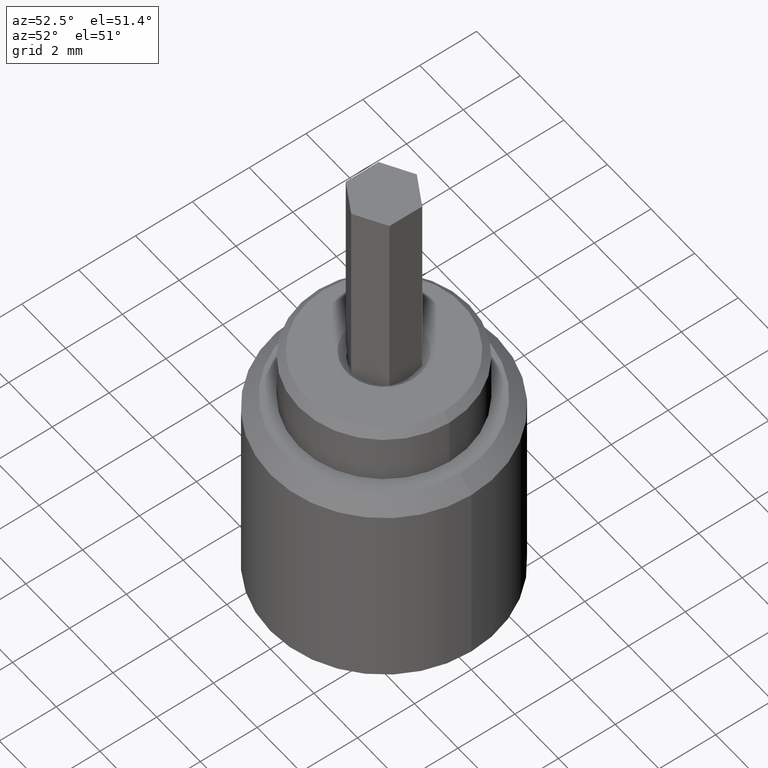
[diagram: clean part render]
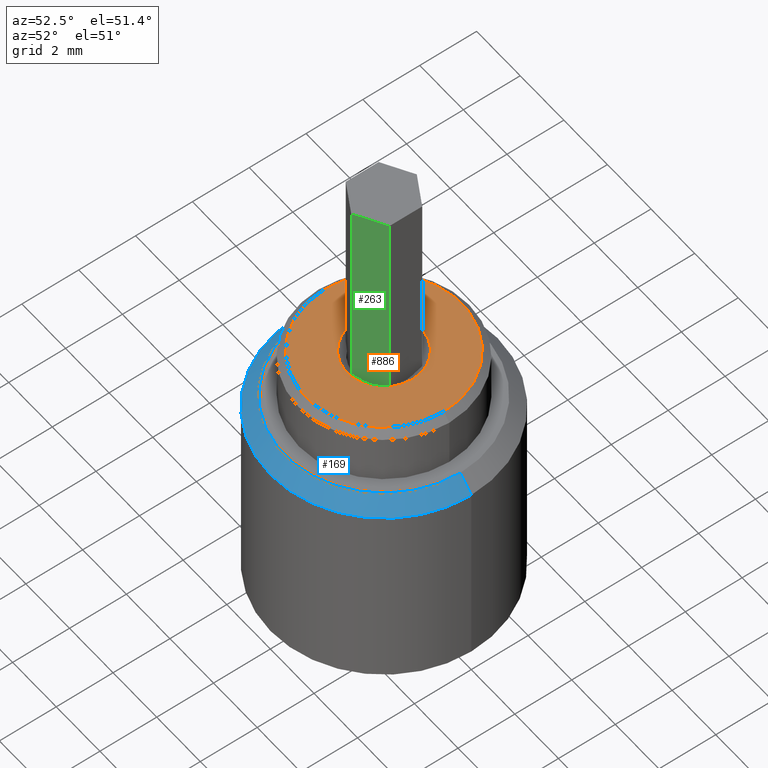
[diagram: same view with three faces highlighted in distinct colors, each labeled with its STEP entity id]
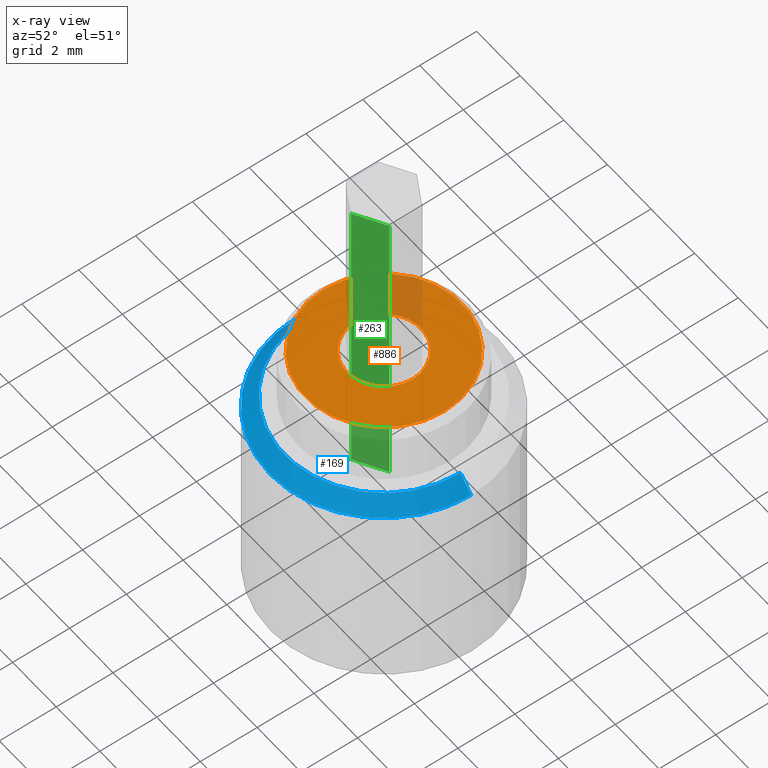
[diagram: x-ray of the same camera — body ghosted, the three highlighted faces saturated]
A machine part, auxiliary view with three faces highlighted in distinct colors.
The next image is the same camera in x-ray (body ghosted, the three faces saturated) — at least one of them is partly hidden behind the body in this view.
Their STEP definitions:

[orange] entity #886 — the highlighted planar face has unit normal (0, 0, 1).
#40 = CARTESIAN_POINT ( 'NONE',  ( 0.000000000000000000, 0.000000000000000000, 10.00000000000000000 ) ) ;
#82 = CARTESIAN_POINT ( 'NONE',  ( 2.749999999999999112, 3.520859547548640440E-16, 10.00000000000000000 ) ) ;
#87 = EDGE_CURVE ( 'NONE', #481, #146, #186, .T. ) ;
#116 = CIRCLE ( 'NONE', #530, 1.300000000000006040 ) ;
#146 = VERTEX_POINT ( 'NONE', #414 ) ;
#184 = CARTESIAN_POINT ( 'NONE',  ( 0.000000000000000000, 0.000000000000000000, 10.00000000000000000 ) ) ;
#186 = CIRCLE ( 'NONE', #810, 2.749999999999999112 ) ;
#227 = CARTESIAN_POINT ( 'NONE',  ( 0.000000000000000000, 0.000000000000000000, 10.00000000000000000 ) ) ;
#238 = EDGE_LOOP ( 'NONE', ( #294, #452 ) ) ;
#250 = CARTESIAN_POINT ( 'NONE',  ( -1.300000000000006040, 1.592040838891566491E-16, 10.00000000000000000 ) ) ;
#272 = AXIS2_PLACEMENT_3D ( 'NONE', #184, #274, #812 ) ;
#274 = DIRECTION ( 'NONE',  ( 0.000000000000000000, 0.000000000000000000, 1.000000000000000000 ) ) ;
#294 = ORIENTED_EDGE ( 'NONE', *, *, #717, .T. ) ;
#308 = DIRECTION ( 'NONE',  ( 1.000000000000000000, 0.000000000000000000, -0.000000000000000000 ) ) ;
#388 = ORIENTED_EDGE ( 'NONE', *, *, #731, .T. ) ;
#400 = CIRCLE ( 'NONE', #272, 2.749999999999999112 ) ;
#414 = CARTESIAN_POINT ( 'NONE',  ( -2.749999999999999112, 0.000000000000000000, 10.00000000000000000 ) ) ;
#419 = DIRECTION ( 'NONE',  ( 1.000000000000000000, 0.000000000000000000, 0.000000000000000000 ) ) ;
#452 = ORIENTED_EDGE ( 'NONE', *, *, #987, .T. ) ;
#481 = VERTEX_POINT ( 'NONE', #82 ) ;
#504 = CARTESIAN_POINT ( 'NONE',  ( 0.000000000000000000, 0.000000000000000000, 10.00000000000000000 ) ) ;
#509 = CARTESIAN_POINT ( 'NONE',  ( 1.300000000000006040, 0.000000000000000000, 10.00000000000000000 ) ) ;
#530 = AXIS2_PLACEMENT_3D ( 'NONE', #227, #595, #842 ) ;
#547 = EDGE_LOOP ( 'NONE', ( #388, #615 ) ) ;
#562 = CARTESIAN_POINT ( 'NONE',  ( 0.000000000000000000, 0.000000000000000000, 10.00000000000000000 ) ) ;
#584 = VERTEX_POINT ( 'NONE', #250 ) ;
#595 = DIRECTION ( 'NONE',  ( -0.000000000000000000, -0.000000000000000000, -1.000000000000000000 ) ) ;
#607 = DIRECTION ( 'NONE',  ( 0.000000000000000000, 0.000000000000000000, 1.000000000000000000 ) ) ;
#615 = ORIENTED_EDGE ( 'NONE', *, *, #87, .T. ) ;
#646 = DIRECTION ( 'NONE',  ( 1.000000000000000000, 0.000000000000000000, 0.000000000000000000 ) ) ;
#660 = DIRECTION ( 'NONE',  ( 0.000000000000000000, 0.000000000000000000, 1.000000000000000000 ) ) ;
#717 = EDGE_CURVE ( 'NONE', #916, #584, #931, .T. ) ;
#731 = EDGE_CURVE ( 'NONE', #146, #481, #400, .T. ) ;
#749 = AXIS2_PLACEMENT_3D ( 'NONE', #504, #607, #308 ) ;
#810 = AXIS2_PLACEMENT_3D ( 'NONE', #40, #660, #419 ) ;
#812 = DIRECTION ( 'NONE',  ( 1.000000000000000000, 0.000000000000000000, 0.000000000000000000 ) ) ;
#820 = PLANE ( 'NONE',  #749 ) ;
#842 = DIRECTION ( 'NONE',  ( 1.000000000000000000, 0.000000000000000000, 0.000000000000000000 ) ) ;
#886 = ADVANCED_FACE ( 'NONE', ( #897, #969 ), #820, .T. ) ;
#897 = FACE_BOUND ( 'NONE', #238, .T. ) ;
#916 = VERTEX_POINT ( 'NONE', #509 ) ;
#931 = CIRCLE ( 'NONE', #961, 1.300000000000006040 ) ;
#956 = DIRECTION ( 'NONE',  ( -0.000000000000000000, -0.000000000000000000, -1.000000000000000000 ) ) ;
#961 = AXIS2_PLACEMENT_3D ( 'NONE', #562, #956, #646 ) ;
#969 = FACE_OUTER_BOUND ( 'NONE', #547, .T. ) ;
#987 = EDGE_CURVE ( 'NONE', #584, #916, #116, .T. ) ;

[blue] entity #169 — the highlighted conical surface has half-angle 45 deg.
#4 = EDGE_CURVE ( 'NONE', #32, #102, #740, .T. ) ;
#25 = DIRECTION ( 'NONE',  ( -0.7071067811865482389, 0.000000000000000000, -0.7071067811865469066 ) ) ;
#32 = VERTEX_POINT ( 'NONE', #954 ) ;
#36 = CIRCLE ( 'NONE', #536, 3.500000000000000444 ) ;
#52 = EDGE_CURVE ( 'NONE', #475, #180, #36, .T. ) ;
#85 = CARTESIAN_POINT ( 'NONE',  ( -3.500000000000000444, 0.000000000000000000, 8.000000000000000000 ) ) ;
#102 = VERTEX_POINT ( 'NONE', #271 ) ;
#108 = LINE ( 'NONE', #260, #148 ) ;
#117 = ORIENTED_EDGE ( 'NONE', *, *, #456, .F. ) ;
#148 = VECTOR ( 'NONE', #25, 999.9999999999998863 ) ;
#169 = ADVANCED_FACE ( 'NONE', ( #507 ), #830, .T. ) ;
#180 = VERTEX_POINT ( 'NONE', #339 ) ;
#208 = DIRECTION ( 'NONE',  ( 0.000000000000000000, 0.000000000000000000, 1.000000000000000000 ) ) ;
#260 = CARTESIAN_POINT ( 'NONE',  ( -4.000000000000000000, 0.000000000000000000, 7.500000000000001776 ) ) ;
#271 = CARTESIAN_POINT ( 'NONE',  ( -4.000000000000000000, 0.000000000000000000, 7.500000000000001776 ) ) ;
#333 = CARTESIAN_POINT ( 'NONE',  ( 0.000000000000000000, 0.000000000000000000, 7.500000000000001776 ) ) ;
#339 = CARTESIAN_POINT ( 'NONE',  ( 3.500000000000000444, 4.592425496802574958E-16, 8.000000000000000000 ) ) ;
#433 = CARTESIAN_POINT ( 'NONE',  ( 0.000000000000000000, 0.000000000000000000, 8.000000000000000000 ) ) ;
#456 = EDGE_CURVE ( 'NONE', #180, #32, #629, .T. ) ;
#475 = VERTEX_POINT ( 'NONE', #85 ) ;
#507 = FACE_OUTER_BOUND ( 'NONE', #833, .T. ) ;
#536 = AXIS2_PLACEMENT_3D ( 'NONE', #433, #208, #568 ) ;
#560 = ORIENTED_EDGE ( 'NONE', *, *, #694, .T. ) ;
#568 = DIRECTION ( 'NONE',  ( 1.000000000000000000, 0.000000000000000000, 0.000000000000000000 ) ) ;
#575 = DIRECTION ( 'NONE',  ( -0.000000000000000000, -0.000000000000000000, -1.000000000000000000 ) ) ;
#629 = LINE ( 'NONE', #852, #930 ) ;
#650 = DIRECTION ( 'NONE',  ( -0.000000000000000000, -0.000000000000000000, -1.000000000000000000 ) ) ;
#694 = EDGE_CURVE ( 'NONE', #475, #102, #108, .T. ) ;
#715 = CARTESIAN_POINT ( 'NONE',  ( 0.000000000000000000, 0.000000000000000000, 7.500000000000001776 ) ) ;
#740 = CIRCLE ( 'NONE', #907, 4.000000000000000000 ) ;
#790 = AXIS2_PLACEMENT_3D ( 'NONE', #715, #650, #823 ) ;
#801 = DIRECTION ( 'NONE',  ( 1.000000000000000000, 0.000000000000000000, 0.000000000000000000 ) ) ;
#823 = DIRECTION ( 'NONE',  ( -1.000000000000000000, 0.000000000000000000, 0.000000000000000000 ) ) ;
#830 = CONICAL_SURFACE ( 'NONE', #790, 4.000000000000000000, 0.7853981633974491672 ) ;
#833 = EDGE_LOOP ( 'NONE', ( #117, #879, #560, #978 ) ) ;
#852 = CARTESIAN_POINT ( 'NONE',  ( 4.000000000000000000, 4.898587196589412829E-16, 7.500000000000001776 ) ) ;
#870 = DIRECTION ( 'NONE',  ( 0.7071067811865482389, 8.659560562354941486E-17, -0.7071067811865469066 ) ) ;
#879 = ORIENTED_EDGE ( 'NONE', *, *, #52, .F. ) ;
#907 = AXIS2_PLACEMENT_3D ( 'NONE', #333, #575, #801 ) ;
#930 = VECTOR ( 'NONE', #870, 999.9999999999998863 ) ;
#954 = CARTESIAN_POINT ( 'NONE',  ( 4.000000000000000000, 4.898587196589412829E-16, 7.500000000000001776 ) ) ;
#978 = ORIENTED_EDGE ( 'NONE', *, *, #4, .F. ) ;

[green] entity #263 — the highlighted planar face has unit normal (0.5, -0.866, 0).
#38 = EDGE_CURVE ( 'NONE', #696, #462, #202, .T. ) ;
#66 = FACE_OUTER_BOUND ( 'NONE', #688, .T. ) ;
#73 = ORIENTED_EDGE ( 'NONE', *, *, #821, .F. ) ;
#123 = VECTOR ( 'NONE', #197, 1000.000000000000000 ) ;
#127 = LINE ( 'NONE', #644, #723 ) ;
#138 = DIRECTION ( 'NONE',  ( 0.8660254037844385966, 0.4999999999999999445, 0.000000000000000000 ) ) ;
#143 = CARTESIAN_POINT ( 'NONE',  ( 1.000000000000000000, -0.5773502691896266192, -4.000000000000000000 ) ) ;
#163 = EDGE_CURVE ( 'NONE', #932, #816, #127, .T. ) ;
#197 = DIRECTION ( 'NONE',  ( 0.000000000000000000, 0.000000000000000000, 1.000000000000000000 ) ) ;
#202 = LINE ( 'NONE', #807, #123 ) ;
#215 = DIRECTION ( 'NONE',  ( 0.8660254037844385966, 0.4999999999999999445, 0.000000000000000000 ) ) ;
#222 = ORIENTED_EDGE ( 'NONE', *, *, #526, .T. ) ;
#263 = ADVANCED_FACE ( 'NONE', ( #66 ), #750, .T. ) ;
#289 = VECTOR ( 'NONE', #940, 1000.000000000000114 ) ;
#318 = CARTESIAN_POINT ( 'NONE',  ( 1.022704979279545093E-15, -1.154700538379251906, 7.000000000000000888 ) ) ;
#344 = AXIS2_PLACEMENT_3D ( 'NONE', #373, #379, #138 ) ;
#373 = CARTESIAN_POINT ( 'NONE',  ( 1.022704979279545093E-15, -1.154700538379251906, -4.000000000000000000 ) ) ;
#379 = DIRECTION ( 'NONE',  ( 0.5000000000000000000, -0.8660254037844387076, 0.000000000000000000 ) ) ;
#462 = VERTEX_POINT ( 'NONE', #318 ) ;
#479 = VECTOR ( 'NONE', #215, 1000.000000000000114 ) ;
#526 = EDGE_CURVE ( 'NONE', #696, #932, #700, .T. ) ;
#554 = CARTESIAN_POINT ( 'NONE',  ( 1.022704979279545093E-15, -1.154700538379251906, -4.000000000000000000 ) ) ;
#644 = CARTESIAN_POINT ( 'NONE',  ( 1.000000000000000000, -0.5773502691896266192, -4.000000000000000000 ) ) ;
#673 = LINE ( 'NONE', #825, #479 ) ;
#688 = EDGE_LOOP ( 'NONE', ( #858, #73, #900, #222 ) ) ;
#696 = VERTEX_POINT ( 'NONE', #804 ) ;
#700 = LINE ( 'NONE', #554, #289 ) ;
#723 = VECTOR ( 'NONE', #895, 1000.000000000000000 ) ;
#750 = PLANE ( 'NONE',  #344 ) ;
#804 = CARTESIAN_POINT ( 'NONE',  ( 1.022704979279545093E-15, -1.154700538379251906, -4.000000000000000000 ) ) ;
#807 = CARTESIAN_POINT ( 'NONE',  ( 1.022704979279545093E-15, -1.154700538379251906, -4.000000000000000000 ) ) ;
#816 = VERTEX_POINT ( 'NONE', #901 ) ;
#821 = EDGE_CURVE ( 'NONE', #462, #816, #673, .T. ) ;
#825 = CARTESIAN_POINT ( 'NONE',  ( 1.022704979279545093E-15, -1.154700538379251906, 7.000000000000000888 ) ) ;
#858 = ORIENTED_EDGE ( 'NONE', *, *, #163, .T. ) ;
#895 = DIRECTION ( 'NONE',  ( 0.000000000000000000, 0.000000000000000000, 1.000000000000000000 ) ) ;
#900 = ORIENTED_EDGE ( 'NONE', *, *, #38, .F. ) ;
#901 = CARTESIAN_POINT ( 'NONE',  ( 1.000000000000000000, -0.5773502691896266192, 7.000000000000000888 ) ) ;
#932 = VERTEX_POINT ( 'NONE', #143 ) ;
#940 = DIRECTION ( 'NONE',  ( 0.8660254037844385966, 0.4999999999999999445, 0.000000000000000000 ) ) ;